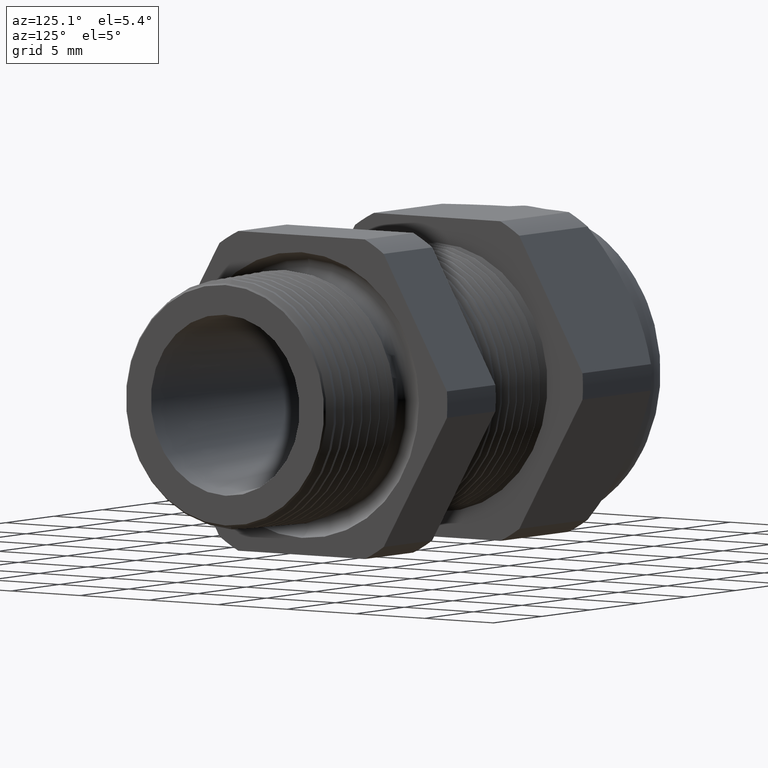
[diagram: clean part render]
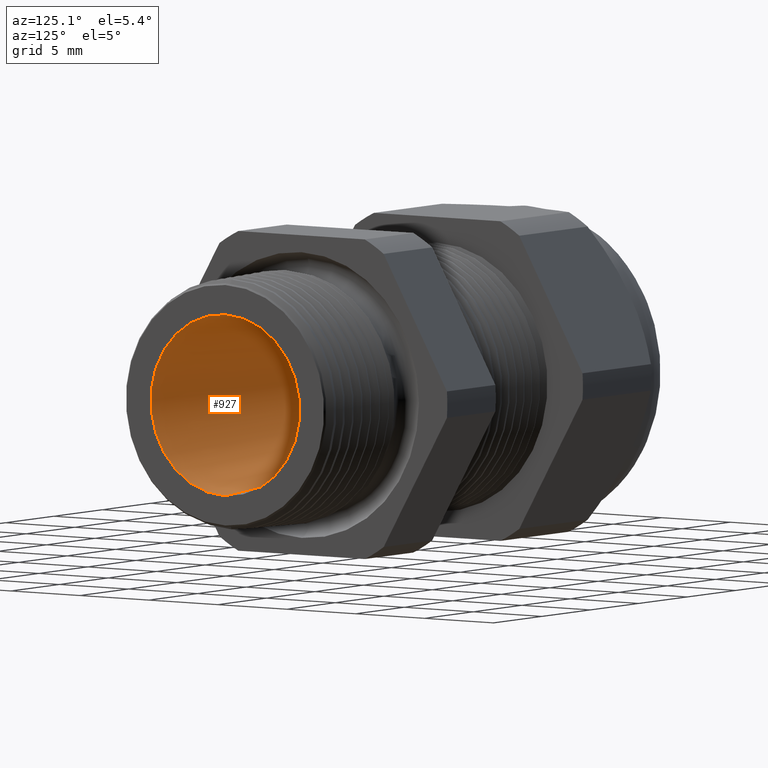
[diagram: same view with one face highlighted and labeled with its STEP entity id]
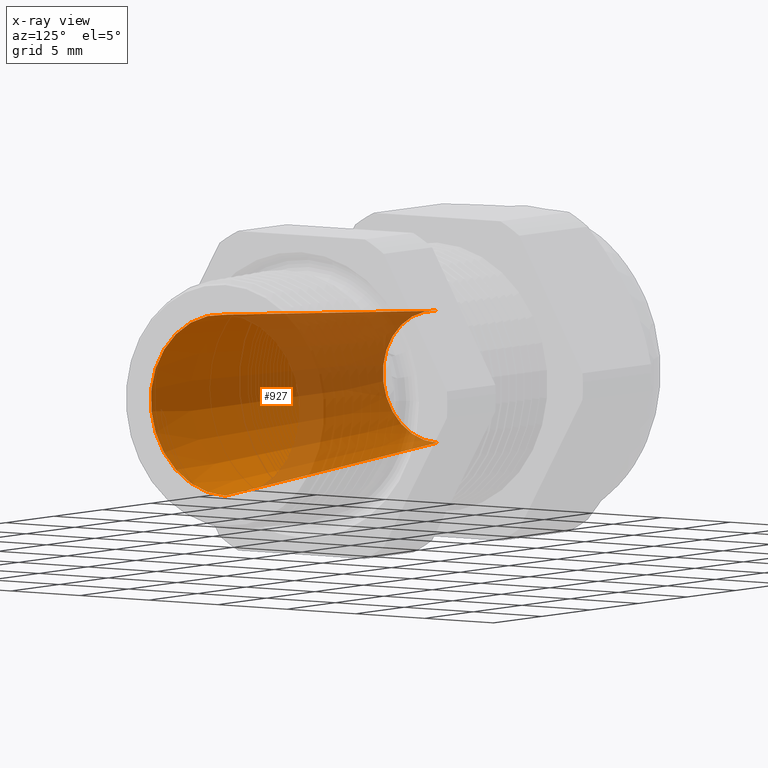
[diagram: x-ray of the same camera — body ghosted, the highlighted face saturated]
A machine part, auxiliary view. The second image highlights one B-rep face of the part: STEP entity #927.
The next image is the same camera in x-ray: the body ghosted, the highlighted face saturated — about 45% of this face is hidden behind the body in this view.
In plain terms, the highlighted conical surface has half-angle 3.818 deg.
Its self-contained STEP definition (entity closure, byte-faithful):
#870 = VERTEX_POINT ( 'NONE', #1536 ) ;
#872 = EDGE_CURVE ( 'NONE', #870, #873, #1535, .T. ) ;
#873 = VERTEX_POINT ( 'NONE', #1530 ) ;
#874 = EDGE_LOOP ( 'NONE', ( #928, #929, #932, #935 ) ) ;
#927 = ADVANCED_FACE ( 'NONE', ( #1686 ), #1684, .F. ) ;
#928 = ORIENTED_EDGE ( 'NONE', *, *, #872, .F. ) ;
#929 = ORIENTED_EDGE ( 'NONE', *, *, #930, .T. ) ;
#930 = EDGE_CURVE ( 'NONE', #870, #931, #1685, .T. ) ;
#931 = VERTEX_POINT ( 'NONE', #1676 ) ;
#932 = ORIENTED_EDGE ( 'NONE', *, *, #933, .T. ) ;
#933 = EDGE_CURVE ( 'NONE', #931, #934, #1675, .T. ) ;
#934 = VERTEX_POINT ( 'NONE', #1670 ) ;
#935 = ORIENTED_EDGE ( 'NONE', *, *, #936, .F. ) ;
#936 = EDGE_CURVE ( 'NONE', #873, #934, #1669, .T. ) ;
#1530 = CARTESIAN_POINT ( 'NONE',  ( -0.8608661417322833700, 0.0000000000000000000, -0.1550000000000000000 ) ) ;
#1531 = DIRECTION ( 'NONE',  ( 0.0000000000000000000, 0.0000000000000000000, -1.000000000000000000 ) ) ;
#1532 = DIRECTION ( 'NONE',  ( 1.000000000000000000, 0.0000000000000000000, 0.0000000000000000000 ) ) ;
#1533 = CARTESIAN_POINT ( 'NONE',  ( -0.8608661417322833700, 0.0000000000000000000, 0.0000000000000000000 ) ) ;
#1534 = AXIS2_PLACEMENT_3D ( 'NONE', #1533, #1532, #1531 ) ;
#1535 = CIRCLE ( 'NONE', #1534, 0.1550000000000000000 ) ;
#1536 = CARTESIAN_POINT ( 'NONE',  ( -0.8608661417322833700, 2.250027807345431400E-017, 0.1550000000000000000 ) ) ;
#1666 = DIRECTION ( 'NONE',  ( 0.9977800507276000100, 0.0000000000000000000, -0.06659557320143644200 ) ) ;
#1667 = VECTOR ( 'NONE', #1666, 39.37007874015748100 ) ;
#1668 = CARTESIAN_POINT ( 'NONE',  ( -0.8608661417322833700, 0.0000000000000000000, -0.1550000000000000000 ) ) ;
#1669 = LINE ( 'NONE', #1668, #1667 ) ;
#1670 = CARTESIAN_POINT ( 'NONE',  ( 4.443791160244338600E-018, 0.0000000000000000000, -0.2124574267310359600 ) ) ;
#1671 = DIRECTION ( 'NONE',  ( 0.0000000000000000000, 0.0000000000000000000, -1.000000000000000000 ) ) ;
#1672 = DIRECTION ( 'NONE',  ( 1.000000000000000000, 0.0000000000000000000, 0.0000000000000000000 ) ) ;
#1673 = CARTESIAN_POINT ( 'NONE',  ( 4.443791160244338600E-018, 0.0000000000000000000, 0.0000000000000000000 ) ) ;
#1674 = AXIS2_PLACEMENT_3D ( 'NONE', #1673, #1672, #1671 ) ;
#1675 = CIRCLE ( 'NONE', #1674, 0.2124574267310359600 ) ;
#1676 = CARTESIAN_POINT ( 'NONE',  ( 4.443791160244338600E-018, 2.601853076012465100E-017, 0.2124574267310359600 ) ) ;
#1677 = DIRECTION ( 'NONE',  ( 0.9977800507276000100, 8.155605555852239100E-018, 0.06659557320143644200 ) ) ;
#1678 = VECTOR ( 'NONE', #1677, 39.37007874015748100 ) ;
#1679 = CARTESIAN_POINT ( 'NONE',  ( -0.8608661417322833700, 1.898202538678397300E-017, 0.1550000000000000000 ) ) ;
#1680 = DIRECTION ( 'NONE',  ( 0.0000000000000000000, 0.0000000000000000000, -1.000000000000000000 ) ) ;
#1681 = DIRECTION ( 'NONE',  ( 1.000000000000000000, 0.0000000000000000000, 0.0000000000000000000 ) ) ;
#1682 = CARTESIAN_POINT ( 'NONE',  ( -0.8608661417322833700, 0.0000000000000000000, 0.0000000000000000000 ) ) ;
#1683 = AXIS2_PLACEMENT_3D ( 'NONE', #1682, #1681, #1680 ) ;
#1684 = CONICAL_SURFACE ( 'NONE', #1683, 0.1550000000000000000, 0.06664489660048481000 ) ;
#1685 = LINE ( 'NONE', #1679, #1678 ) ;
#1686 = FACE_OUTER_BOUND ( 'NONE', #874, .T. ) ;